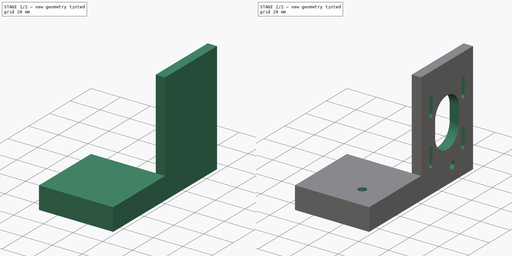
[diagram: build sequence overview — one tinted view per stage of 2, left to right]
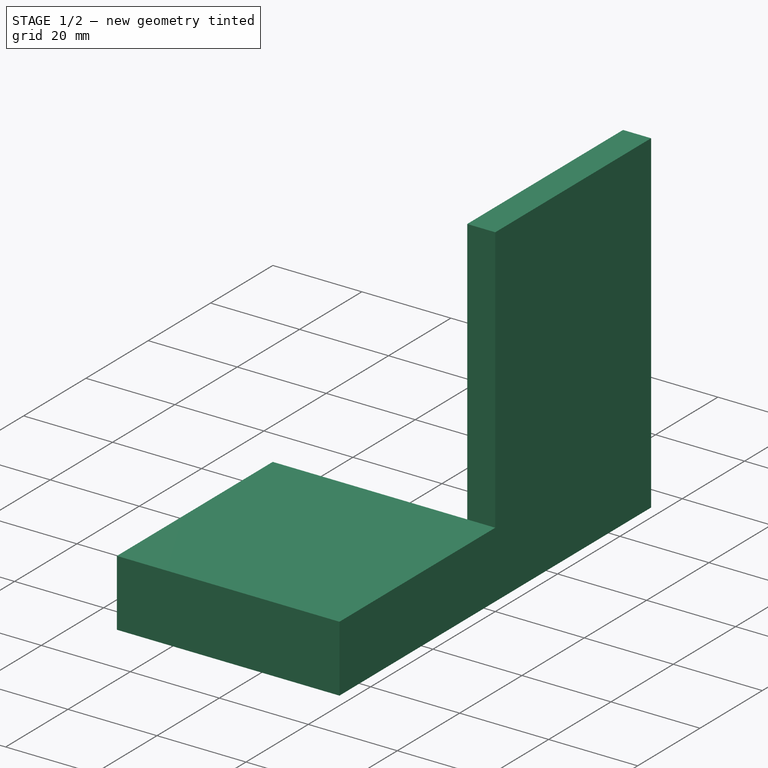
[diagram: stage 1 of 2 — iso view after this stage's code; geometry added in this stage tinted green]
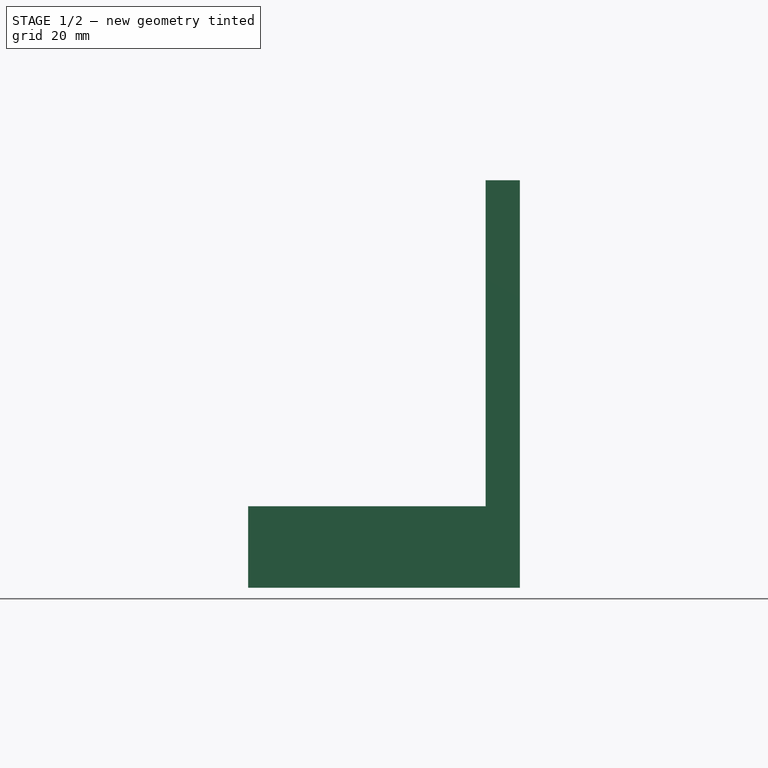
[diagram: stage 1 of 2 — front view after this stage's code; geometry added in this stage tinted green]
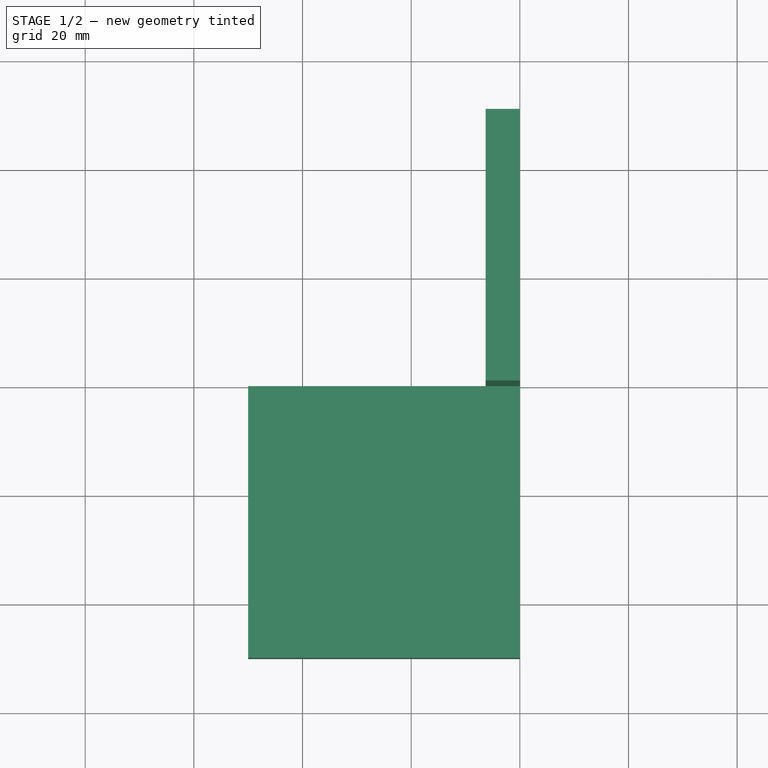
[diagram: stage 1 of 2 — top view after this stage's code; geometry added in this stage tinted green]
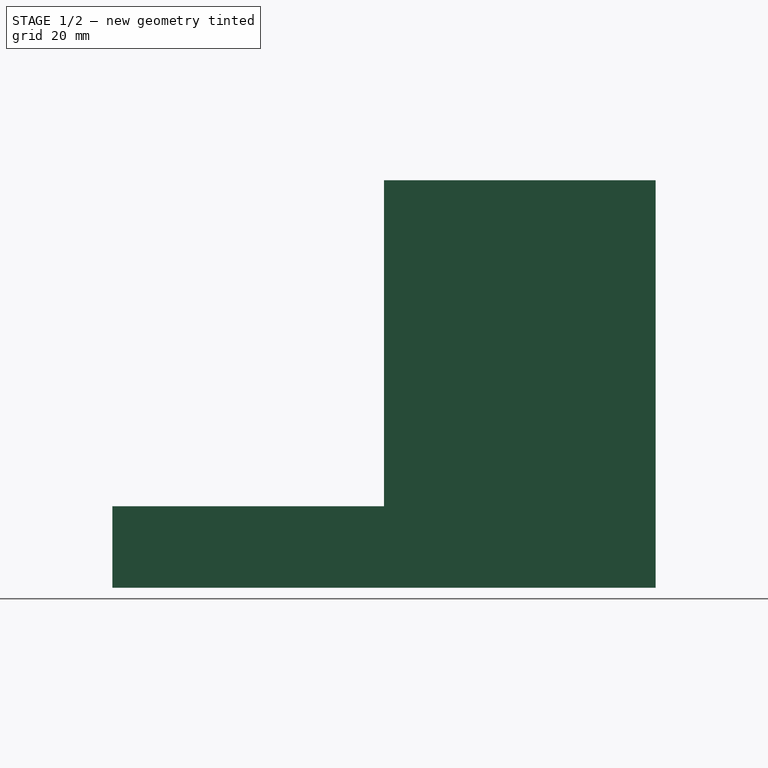
[diagram: stage 1 of 2 — right view after this stage's code; geometry added in this stage tinted green]
FCSTD DOCUMENT  (FreeCAD 0.19R24276 (Git))
Label: NEMA_motor_mount
License: All rights reserved
LicenseURL: http://en.wikipedia.org/wiki/All_rights_reserved
objects: Sketcher::SketchObject×5, PartDesign::Pad×2, PartDesign::Pocket×2, PartDesign::Body×1, App::Part×1
note: 14 computed .brp shape members not serialized (recipe doc carries the construction recipe); baked Part::Feature solids carry a one-line shape summary decoded from their .brp

FEATURE [Sketcher::SketchObject] Sketch
  FullyConstrained = true
  MapMode = 5
  Support = -> [XY_Plane001]
  sketch-geometry (4):
    g0: LineSegment StartX=0 StartY=0 StartZ=0 EndX=-50 EndY=0 EndZ=0
    g1: LineSegment StartX=-50 StartY=0 StartZ=0 EndX=-50 EndY=-50 EndZ=0
    g2: LineSegment StartX=-50 StartY=-50 StartZ=0 EndX=0 EndY=-50 EndZ=0
    g3: LineSegment StartX=0 StartY=-50 StartZ=0 EndX=0 EndY=0 EndZ=0
  constraints (11):
    c: Coincident(g0,g1)
    c: Coincident(g1,g2)
    c: Coincident(g2,g3)
    c: Coincident(g3,g0)
    c: Horizontal(g0)
    c: Horizontal(g2)
    c: Vertical(g1)
    c: Vertical(g3)
    c: Coincident(g0,g-1)
    c: Distance(g3) = 50
    c: Distance(g0) = 50
FEATURE [PartDesign::Pad] Pad
  Direction = (1,1,1)
  Length = 15
  Length2 = 100
  Profile = -> Sketch
  Type = 0
FEATURE [Sketcher::SketchObject] Sketch001
  FullyConstrained = true
  MapMode = 5
  Support = -> [XY_Plane001]
  sketch-geometry (4):
    g0: LineSegment StartX=0 StartY=0 StartZ=0 EndX=-6.3 EndY=0 EndZ=0
    g1: LineSegment StartX=-6.3 StartY=0 StartZ=0 EndX=-6.3 EndY=50 EndZ=0
    g2: LineSegment StartX=-6.3 StartY=50 StartZ=0 EndX=0 EndY=50 EndZ=0
    g3: LineSegment StartX=0 StartY=50 StartZ=0 EndX=0 EndY=0 EndZ=0
  constraints (11):
    c: Coincident(g0,g1)
    c: Coincident(g1,g2)
    c: Coincident(g2,g3)
    c: Coincident(g3,g0)
    c: Horizontal(g0)
    c: Horizontal(g2)
    c: Vertical(g1)
    c: Vertical(g3)
    c: Coincident(g0,g-1)
    c: Distance(g2) = 6.3
    c: Distance(g1) = 50
FEATURE [PartDesign::Pad] Pad001
  BaseFeature = -> Pad
  Direction = (1,1,1)
  Length = 75
  Length2 = 100
  Profile = -> Sketch001
  Type = 0
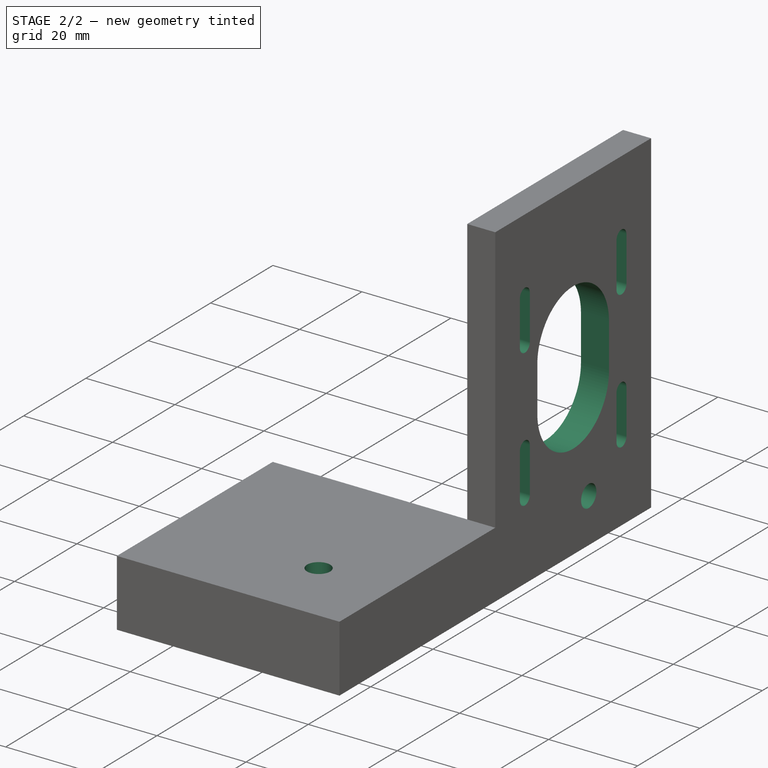
[diagram: stage 2 of 2 — iso view after this stage's code; geometry added in this stage tinted green]
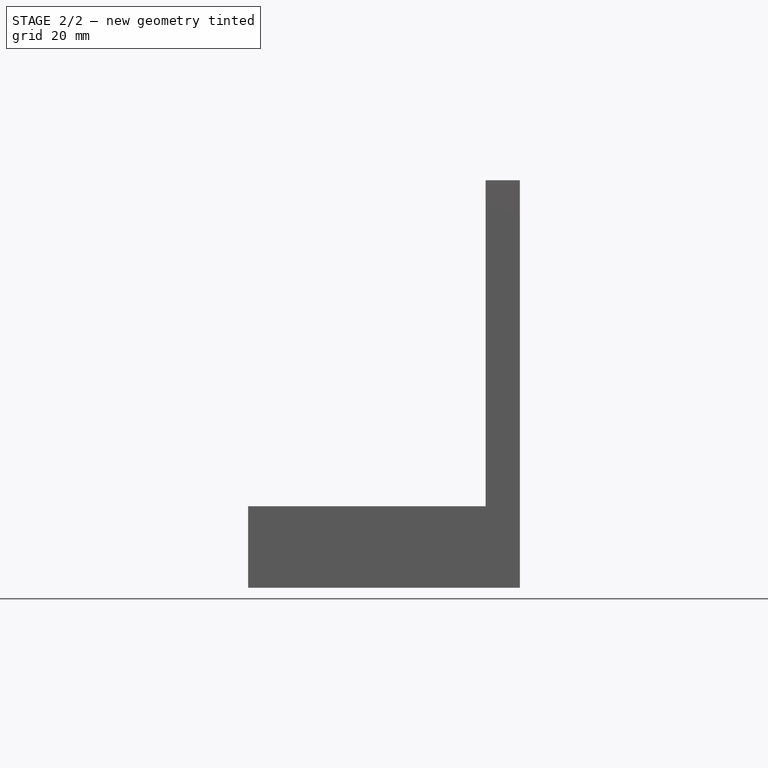
[diagram: stage 2 of 2 — front view after this stage's code; geometry added in this stage tinted green]
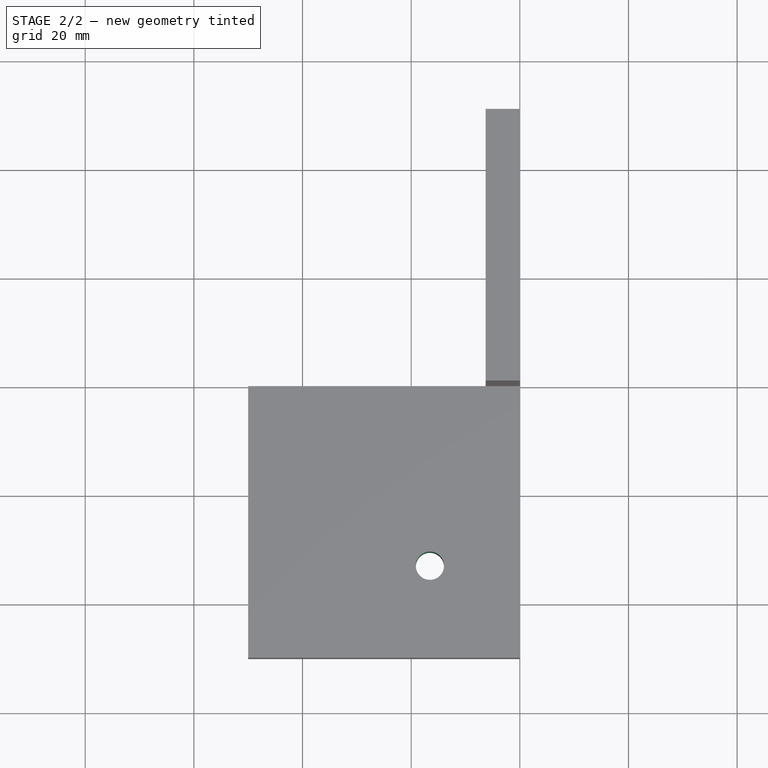
[diagram: stage 2 of 2 — top view after this stage's code; geometry added in this stage tinted green]
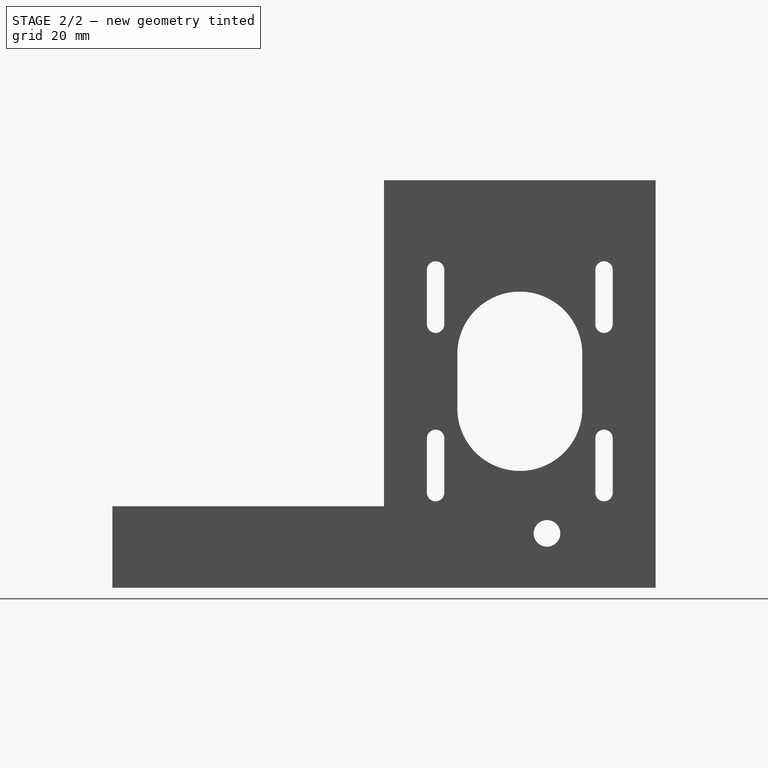
[diagram: stage 2 of 2 — right view after this stage's code; geometry added in this stage tinted green]
FEATURE [Sketcher::SketchObject] Sketch002
  FullyConstrained = true
  MapMode = 5
  Placement = pos=(0,0,0) rot=(0.57735,0.57735,0.57735;2.0944rad)
  Support = -> [Pad001]
  sketch-geometry (24):
    g0: ArcOfCircle CenterX=40.5 CenterY=58.5 CenterZ=0 NormalX=0 NormalY=0 NormalZ=1 AngleXU=0 Radius=1.6 StartAngle=2.3e-15 EndAngle=3.14159
    g1: ArcOfCircle CenterX=40.5 CenterY=48.5 CenterZ=0 NormalX=0 NormalY=0 NormalZ=1 AngleXU=0 Radius=1.6 StartAngle=3.14159 EndAngle=6.28319
    g2: LineSegment StartX=38.9 StartY=58.5 StartZ=0 EndX=38.9 EndY=48.5 EndZ=0
    g3: LineSegment StartX=42.1 StartY=58.5 StartZ=0 EndX=42.1 EndY=48.5 EndZ=0
    g4: ArcOfCircle CenterX=40.5 CenterY=27.5 CenterZ=0 NormalX=0 NormalY=0 NormalZ=1 AngleXU=0 Radius=1.6 StartAngle=0 EndAngle=3.14159
    g5: ArcOfCircle CenterX=40.5 CenterY=17.5 CenterZ=0 NormalX=0 NormalY=0 NormalZ=1 AngleXU=0 Radius=1.6 StartAngle=3.14159 EndAngle=6.28319
    g6: LineSegment StartX=38.9 StartY=27.5 StartZ=0 EndX=38.9 EndY=17.5 EndZ=0
    g7: LineSegment StartX=42.1 StartY=27.5 StartZ=0 EndX=42.1 EndY=17.5 EndZ=0
    g8: LineSegment StartX=42.1 StartY=58.5 StartZ=0 EndX=42.1 EndY=27.5 EndZ=0
    g9: ArcOfCircle CenterX=9.5 CenterY=58.5 CenterZ=0 NormalX=0 NormalY=0 NormalZ=1 AngleXU=0 Radius=1.6 StartAngle=7e-16 EndAngle=3.14159
    g10: ArcOfCircle CenterX=9.5 CenterY=48.5 CenterZ=0 NormalX=0 NormalY=0 NormalZ=1 AngleXU=0 Radius=1.6 StartAngle=3.14159 EndAngle=6.28319
    g11: LineSegment StartX=7.9 StartY=58.5 StartZ=0 EndX=7.9 EndY=48.5 EndZ=0
    g12: LineSegment StartX=11.1 StartY=58.5 StartZ=0 EndX=11.1 EndY=48.5 EndZ=0
    g13: LineSegment StartX=42.1 StartY=58.5 StartZ=0 EndX=11.1 EndY=58.5 EndZ=0
    g14: ArcOfCircle CenterX=9.5 CenterY=27.5 CenterZ=0 NormalX=0 NormalY=0 NormalZ=1 AngleXU=0 Radius=1.6 StartAngle=8e-16 EndAngle=3.14159
    g15: ArcOfCircle CenterX=9.5 CenterY=17.5 CenterZ=0 NormalX=0 NormalY=0 NormalZ=1 AngleXU=0 Radius=1.6 StartAngle=3.14159 EndAngle=6.28319
    g16: LineSegment StartX=7.9 StartY=27.5 StartZ=0 EndX=7.9 EndY=17.5 EndZ=0
    g17: LineSegment StartX=11.1 StartY=27.5 StartZ=0 EndX=11.1 EndY=17.5 EndZ=0
    g18: LineSegment StartX=11.1 StartY=58.5 StartZ=0 EndX=11.1 EndY=27.5 EndZ=0
    g19: ArcOfCircle CenterX=25 CenterY=43 CenterZ=0 NormalX=0 NormalY=0 NormalZ=1 AngleXU=0 Radius=11.5 StartAngle=2.1e-15 EndAngle=3.14159
    g20: ArcOfCircle CenterX=25 CenterY=33 CenterZ=0 NormalX=0 NormalY=0 NormalZ=1 AngleXU=0 Radius=11.5 StartAngle=3.14159 EndAngle=6.28319
    g21: LineSegment StartX=13.5 StartY=43 StartZ=0 EndX=13.5 EndY=33 EndZ=0
    g22: LineSegment StartX=36.5 StartY=43 StartZ=0 EndX=36.5 EndY=33 EndZ=0
    g23: Circle CenterX=30 CenterY=10 CenterZ=0 NormalX=0 NormalY=0 NormalZ=1 AngleXU=0 Radius=2.45
  constraints (59):
    c: Tangent(g0,g3) = 1.5708
    c: Tangent(g0,g2) = -1.5708
    c: Tangent(g2,g1) = -1.5708
    c: Tangent(g3,g1) = 1.5708
    c: Vertical(g2)
    c: Equal(g0,g1)
    c: Radius(g1) = 1.6
    c: Distance(g3) = 10
    c: Tangent(g4,g7) = 1.5708
    c: Tangent(g4,g6) = -1.5708
    c: Tangent(g6,g5) = -1.5708
    c: Tangent(g7,g5) = 1.5708
    c: Vertical(g6)
    c: Equal(g4,g5)
    c: Equal(g1,g5) = 1.6
    c: Equal(g3,g7) = 5
    c: Coincident(g0,g8)
    c: Coincident(g4,g8)
    c: Distance(g8) = 31
    c: Angle(g8) = -1.5708
    c: Tangent(g9,g12) = 1.5708
    c: Tangent(g9,g11) = -1.5708
    c: Tangent(g11,g10) = -1.5708
    c: Tangent(g12,g10) = 1.5708
    c: Vertical(g11)
    c: Equal(g9,g10)
    c: Equal(g1,g10) = 1.6
    c: Equal(g3,g12) = 5
    c: Coincident(g0,g13)
    c: Coincident(g9,g13)
    c: Distance(g13) = 31
    c: Perpendicular(g13,g8)
    c: Tangent(g14,g17) = 1.5708
    c: Tangent(g14,g16) = -1.5708
    c: Tangent(g16,g15) = -1.5708
    c: Tangent(g17,g15) = 1.5708
    c: Vertical(g16)
    c: Equal(g14,g15)
    c: Equal(g1,g15) = 1.6
    c: Equal(g3,g17) = 5
    c: Coincident(g9,g18)
    c: Coincident(g14,g18)
    c: Equal(g8,g18)
    c: Parallel(g18,g8)
    c: Tangent(g19,g22) = 1.5708
    c: Tangent(g19,g21) = -1.5708
    c: Tangent(g21,g20) = -1.5708
    c: Tangent(g22,g20) = 1.5708
    c: Vertical(g21)
    c: Equal(g19,g20)
    c: Radius(g20) = 11.5
    c: Distance(g22) = 10
    c: DistanceX(g19,g0) = 15.5
    c: DistanceY(g19,g9) = 15.5
    c: DistanceY(g-1,g20) = 33
    c: DistanceX(g-1,g20) = 25
    c: Radius(g23) = 2.45
    c: DistanceX(g-1,g23) = 30
    c: DistanceY(g-1,g23) = 10
FEATURE [PartDesign::Pocket] Pocket
  BaseFeature = -> Pad001
  Length = 13
  Length2 = 100
  Profile = -> Sketch002
  Type = 0
FEATURE [Sketcher::SketchObject] Sketch003
  FullyConstrained = true
  MapMode = 5
  Placement = pos=(0,0,0) rot=(1,0,0;3.14159rad)
  Support = -> [Pocket]
  sketch-geometry (4):
    g0: LineSegment StartX=-8.3 StartY=37.1 StartZ=0 EndX=-24.8 EndY=37.1 EndZ=0
    g1: LineSegment StartX=-24.8 StartY=37.1 StartZ=0 EndX=-24.8 EndY=29 EndZ=0
    g2: LineSegment StartX=-24.8 StartY=29 StartZ=0 EndX=-8.3 EndY=29 EndZ=0
    g3: LineSegment StartX=-8.3 StartY=29 StartZ=0 EndX=-8.3 EndY=37.1 EndZ=0
  constraints (12):
    c: Coincident(g0,g1)
    c: Coincident(g1,g2)
    c: Coincident(g2,g3)
    c: Coincident(g3,g0)
    c: Horizontal(g0)
    c: Horizontal(g2)
    c: Vertical(g1)
    c: Vertical(g3)
    c: Distance(g0) = 16.5
    c: Distance(g3) = 8.1
    c: DistanceX(g2,g-1) = 8.3
    c: DistanceY(g-1,g2) = 29
FEATURE [Sketcher::SketchObject] Sketch004
  FullyConstrained = true
  MapMode = 5
  Placement = pos=(0,0,-10) rot=(1,0,0;3.14159rad)
  sketch-geometry (1):
    g0: Circle CenterX=-16.55 CenterY=33.05 CenterZ=0 NormalX=0 NormalY=0 NormalZ=1 AngleXU=0 Radius=2.6
  constraints (3):
    c: Radius(g0) = 2.6
    c: DistanceX(g0,g-1) = 16.55
    c: DistanceY(g-1,g0) = 33.05
FEATURE [PartDesign::Pocket] Pocket001
  BaseFeature = -> Pocket
  Length = 5
  Length2 = 100
  Profile = -> Sketch004
  Type = 1
FEATURE [PartDesign::Body] Body
  Group = -> [Sketch,Pad,Sketch001,Pad001,Sketch002,Pocket,Sketch003,Sketch004,Pocket001]
  Origin = -> Origin001
  Tip = -> Pocket001
FEATURE [App::Part] Part
  Group = -> [Body]
  Origin = -> Origin
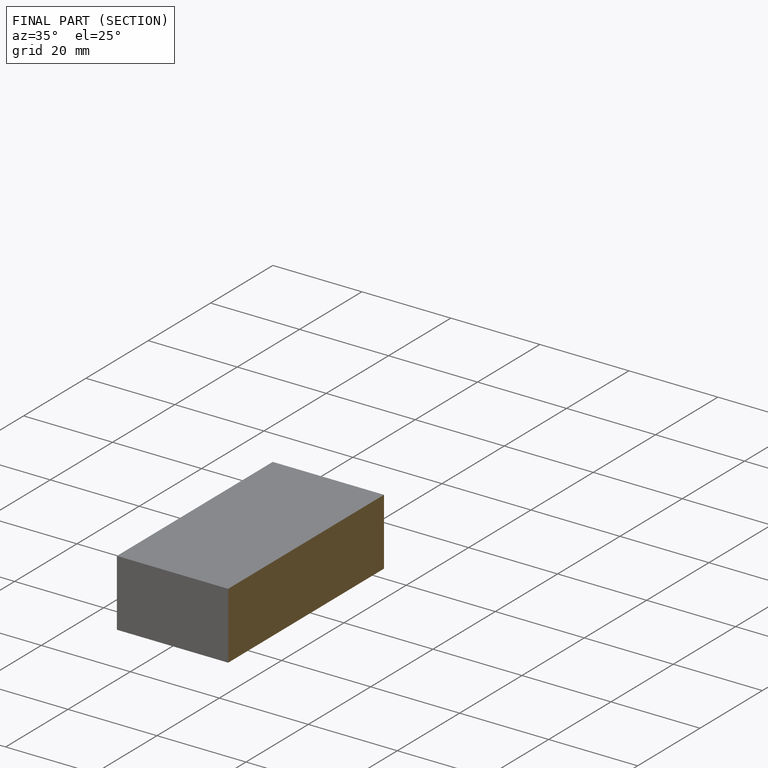
[diagram: finished part — half-section view (interior)]
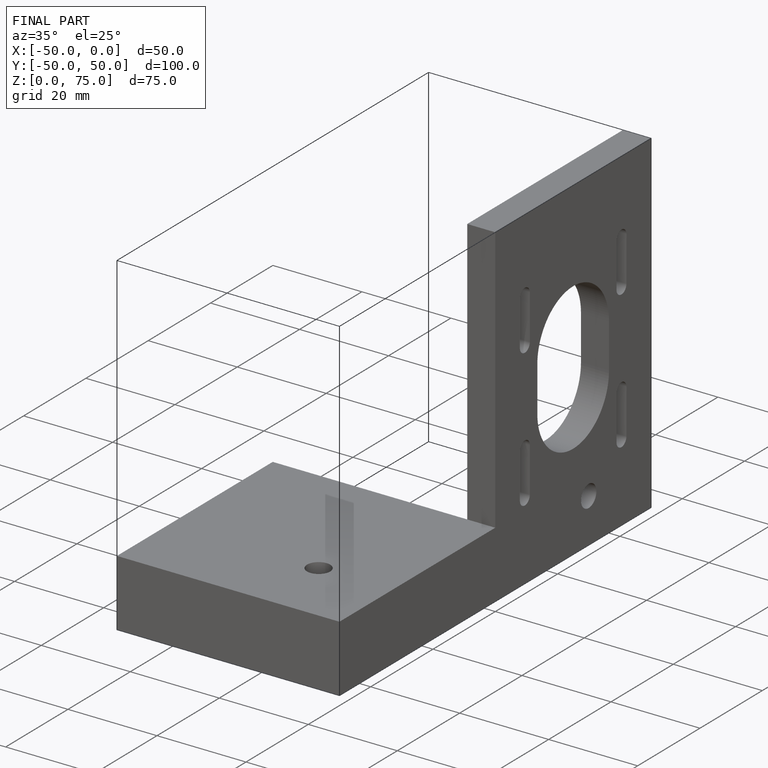
[diagram: finished part — iso view with bounding-box wireframe]
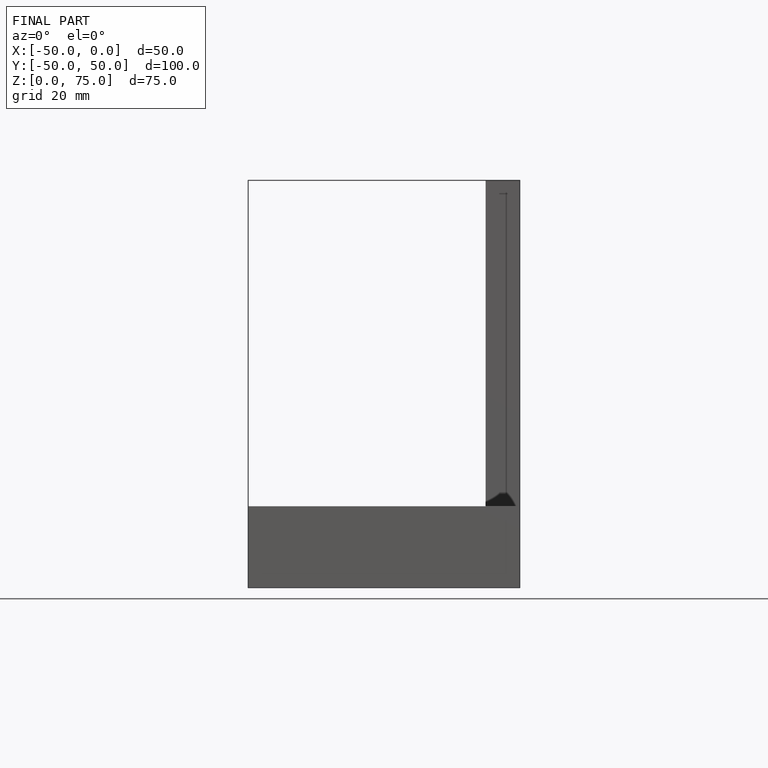
[diagram: finished part — front view with bounding-box wireframe]
